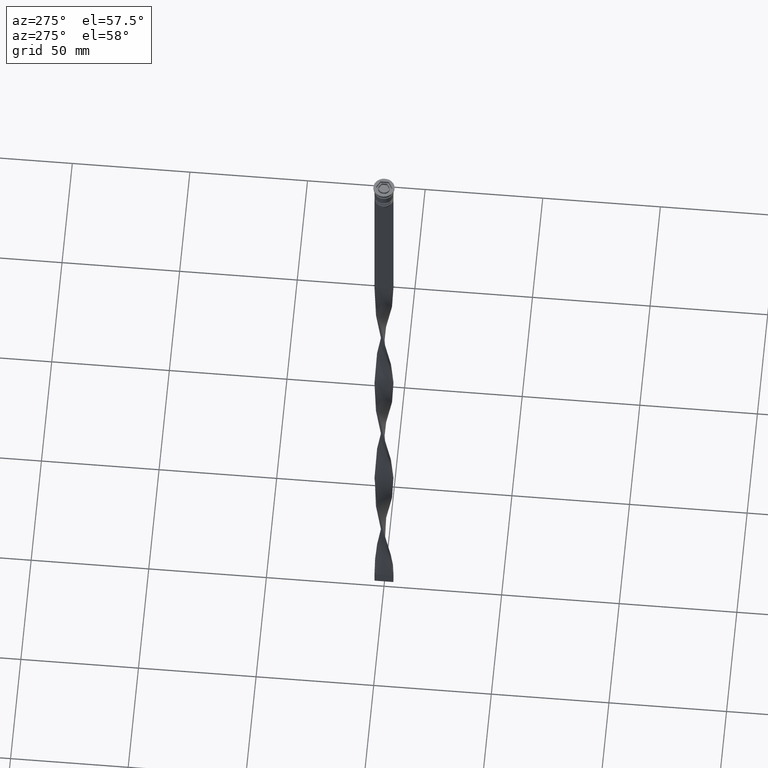
[diagram: clean part render]
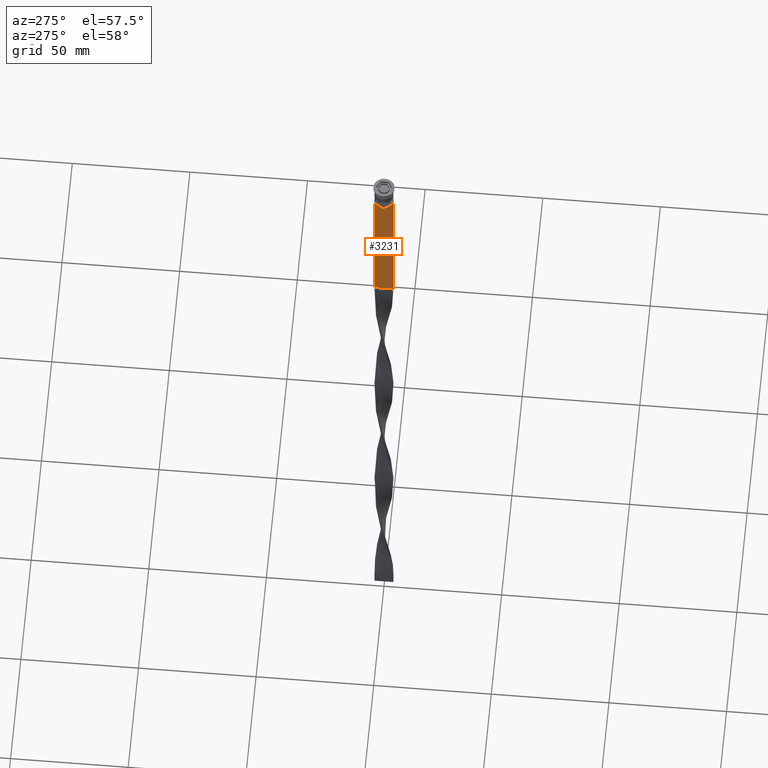
[diagram: same view with one face highlighted and labeled with its STEP entity id]
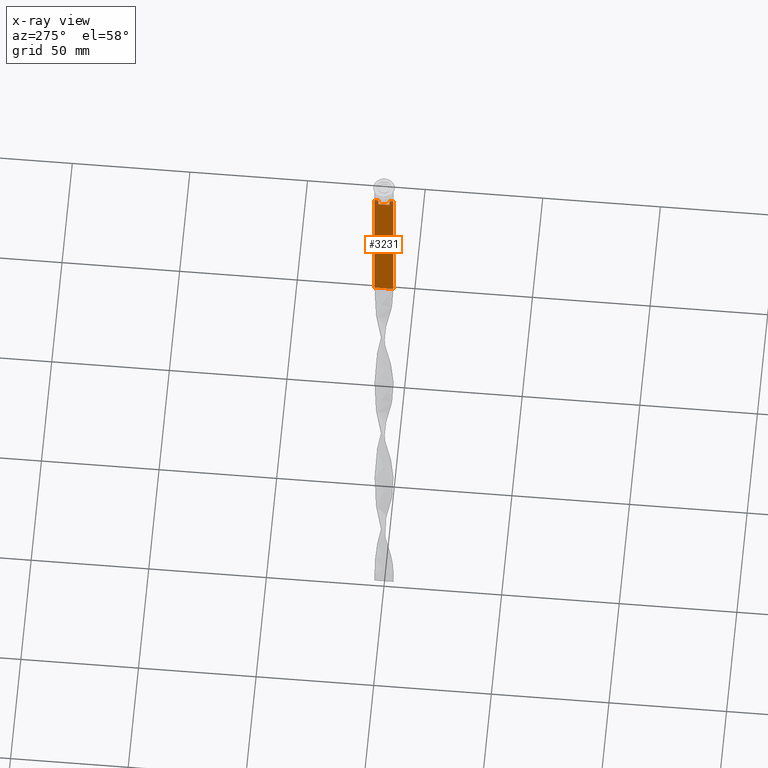
[diagram: x-ray of the same camera — body ghosted, the highlighted face saturated]
A machine part, auxiliary view. The second image highlights one B-rep face of the part: STEP entity #3231.
The next image is the same camera in x-ray: the body ghosted, the highlighted face saturated — about 0% of this face is hidden behind the body in this view.
In plain terms, the highlighted planar face has unit normal (-1, 0, 0).
Its self-contained STEP definition (entity closure, byte-faithful):
#157 = EDGE_CURVE ( 'NONE', #576, #1479, #4014, .T. ) ;
#183 = PLANE ( 'NONE',  #3582 ) ;
#197 = CARTESIAN_POINT ( 'NONE',  ( -0.5000000000000000000, 4.000000000000000000, -1.437742251701450202 ) ) ;
#260 = VERTEX_POINT ( 'NONE', #3611 ) ;
#312 = VERTEX_POINT ( 'NONE', #2014 ) ;
#365 = CARTESIAN_POINT ( 'NONE',  ( -0.5000000000000000000, -2.856571371417138572, -9.500000000000000000 ) ) ;
#398 = DIRECTION ( 'NONE',  ( 0.000000000000000000, 0.000000000000000000, 1.000000000000000000 ) ) ;
#501 = DIRECTION ( 'NONE',  ( 0.000000000000000000, 0.000000000000000000, -1.000000000000000000 ) ) ;
#518 = VERTEX_POINT ( 'NONE', #365 ) ;
#534 = VECTOR ( 'NONE', #501, 1000.000000000000000 ) ;
#572 = DIRECTION ( 'NONE',  ( -0.000000000000000000, -0.000000000000000000, 1.000000000000000000 ) ) ;
#576 = VERTEX_POINT ( 'NONE', #1578 ) ;
#615 = CARTESIAN_POINT ( 'NONE',  ( -0.5000000000000000000, -2.347338918861097135, -10.00000000000000000 ) ) ;
#804 = ORIENTED_EDGE ( 'NONE', *, *, #2360, .F. ) ;
#828 = CARTESIAN_POINT ( 'NONE',  ( -0.5000000000000000000, 2.347338918861097135, -12.50000000000000000 ) ) ;
#847 = LINE ( 'NONE', #3664, #3042 ) ;
#872 = EDGE_CURVE ( 'NONE', #576, #947, #847, .T. ) ;
#903 = DIRECTION ( 'NONE',  ( 0.000000000000000000, 0.000000000000000000, -1.000000000000000000 ) ) ;
#934 = CARTESIAN_POINT ( 'NONE',  ( -0.5000000000000000000, -4.000000000000000000, -78.50000000000000000 ) ) ;
#944 = CARTESIAN_POINT ( 'NONE',  ( -0.5000000000000000000, -3.867815921162741422, -9.500000000000000000 ) ) ;
#947 = VERTEX_POINT ( 'NONE', #3720 ) ;
#1112 = LINE ( 'NONE', #3641, #2188 ) ;
#1131 = EDGE_CURVE ( 'NONE', #947, #260, #1553, .T. ) ;
#1213 = LINE ( 'NONE', #2365, #2792 ) ;
#1257 = VECTOR ( 'NONE', #903, 1000.000000000000000 ) ;
#1405 = ORIENTED_EDGE ( 'NONE', *, *, #2809, .F. ) ;
#1408 = EDGE_CURVE ( 'NONE', #3778, #3305, #3820, .T. ) ;
#1426 = CARTESIAN_POINT ( 'NONE',  ( -0.5000000000000000000, -4.000000000000000000, -1.437742251701450202 ) ) ;
#1455 = CARTESIAN_POINT ( 'NONE',  ( -0.5000000000000000000, 2.347338918861097135, -10.00000000000000000 ) ) ;
#1479 = VERTEX_POINT ( 'NONE', #2834 ) ;
#1496 = CARTESIAN_POINT ( 'NONE',  ( -0.5000000000000000000, -2.347338918861097135, 0.000000000000000000 ) ) ;
#1537 = DIRECTION ( 'NONE',  ( 0.000000000000000000, 1.000000000000000000, 0.000000000000000000 ) ) ;
#1544 = DIRECTION ( 'NONE',  ( 0.000000000000000000, 0.000000000000000000, -1.000000000000000000 ) ) ;
#1546 = ORIENTED_EDGE ( 'NONE', *, *, #3374, .F. ) ;
#1553 = LINE ( 'NONE', #2838, #2709 ) ;
#1557 = EDGE_CURVE ( 'NONE', #2810, #518, #2044, .T. ) ;
#1578 = CARTESIAN_POINT ( 'NONE',  ( -0.5000000000000000000, 4.000000000000000000, -9.500000000000000000 ) ) ;
#1748 = FACE_OUTER_BOUND ( 'NONE', #2867, .T. ) ;
#1751 = CARTESIAN_POINT ( 'NONE',  ( -0.5000000000000000000, 2.687094542495897631, -9.666938847453439010 ) ) ;
#1764 = DIRECTION ( 'NONE',  ( 0.000000000000000000, -1.000000000000000000, 0.000000000000000000 ) ) ;
#1790 = LINE ( 'NONE', #1496, #3182 ) ;
#1863 = EDGE_CURVE ( 'NONE', #3119, #1479, #4025, .T. ) ;
#1882 = ORIENTED_EDGE ( 'NONE', *, *, #3330, .F. ) ;
#2014 = CARTESIAN_POINT ( 'NONE',  ( -0.5000000000000000000, -4.000000000000000000, -9.500000000000000000 ) ) ;
#2031 = CARTESIAN_POINT ( 'NONE',  ( -0.5000000000000000000, -2.856571371417138572, -9.500000000000000000 ) ) ;
#2044 = B_SPLINE_CURVE_WITH_KNOTS ( 'NONE', 3,
 ( #3905, #2580, #3220, #2031 ),
 .UNSPECIFIED., .F., .F.,
 ( 4, 4 ),
 ( 0.01178336557230038641, 0.01249758354768160454 ),
 .UNSPECIFIED. ) ;
#2069 = CARTESIAN_POINT ( 'NONE',  ( -0.5000000000000000000, 2.856571371417138572, -9.500000000000000000 ) ) ;
#2122 = ORIENTED_EDGE ( 'NONE', *, *, #872, .F. ) ;
#2124 = DIRECTION ( 'NONE',  ( 0.000000000000000000, -1.000000000000000000, 0.000000000000000000 ) ) ;
#2137 = ORIENTED_EDGE ( 'NONE', *, *, #1131, .F. ) ;
#2188 = VECTOR ( 'NONE', #1764, 1000.000000000000000 ) ;
#2199 = CARTESIAN_POINT ( 'NONE',  ( -0.5000000000000000000, -2.347338918861097135, -12.50000000000000000 ) ) ;
#2216 = CARTESIAN_POINT ( 'NONE',  ( -0.5000000000000000000, -4.000000000000000000, -1.437742251701450202 ) ) ;
#2234 = DIRECTION ( 'NONE',  ( 0.000000000000000000, -1.000000000000000000, 0.000000000000000000 ) ) ;
#2243 = DIRECTION ( 'NONE',  ( 0.000000000000000000, -1.000000000000000000, 0.000000000000000000 ) ) ;
#2258 = EDGE_CURVE ( 'NONE', #260, #3778, #3064, .T. ) ;
#2307 = ORIENTED_EDGE ( 'NONE', *, *, #1557, .F. ) ;
#2360 = EDGE_CURVE ( 'NONE', #312, #3119, #3493, .T. ) ;
#2365 = CARTESIAN_POINT ( 'NONE',  ( -0.5000000000000000000, 2.399999999999996803, -12.50000000000000000 ) ) ;
#2369 = CARTESIAN_POINT ( 'NONE',  ( -0.5000000000000000000, 2.347338918861097135, -10.00000000000000000 ) ) ;
#2389 = ORIENTED_EDGE ( 'NONE', *, *, #157, .T. ) ;
#2580 = CARTESIAN_POINT ( 'NONE',  ( -0.5000000000000000000, -2.517408374291112416, -9.833662228483172285 ) ) ;
#2709 = VECTOR ( 'NONE', #2243, 1000.000000000000000 ) ;
#2718 = VECTOR ( 'NONE', #1544, 1000.000000000000000 ) ;
#2792 = VECTOR ( 'NONE', #3954, 1000.000000000000000 ) ;
#2809 = EDGE_CURVE ( 'NONE', #3469, #2810, #1790, .T. ) ;
#2810 = VERTEX_POINT ( 'NONE', #615 ) ;
#2834 = CARTESIAN_POINT ( 'NONE',  ( -0.5000000000000000000, 4.000000000000000000, -78.50000000000000000 ) ) ;
#2838 = CARTESIAN_POINT ( 'NONE',  ( -0.5000000000000000000, -4.000000000000000000, -9.500000000000000000 ) ) ;
#2867 = EDGE_LOOP ( 'NONE', ( #3376, #2137, #2122, #2389, #3482, #804, #3063, #1882, #2307, #1405, #1546, #3545 ) ) ;
#2894 = CARTESIAN_POINT ( 'NONE',  ( -0.5000000000000000000, -4.000000000000000000, -9.500000000000000000 ) ) ;
#3042 = VECTOR ( 'NONE', #2124, 1000.000000000000000 ) ;
#3063 = ORIENTED_EDGE ( 'NONE', *, *, #3663, .F. ) ;
#3064 = B_SPLINE_CURVE_WITH_KNOTS ( 'NONE', 3,
 ( #2069, #1751, #3276, #2369 ),
 .UNSPECIFIED., .F., .F.,
 ( 4, 4 ),
 ( 0.004956812174141195064, 0.005670477137898153989 ),
 .UNSPECIFIED. ) ;
#3119 = VERTEX_POINT ( 'NONE', #3699 ) ;
#3182 = VECTOR ( 'NONE', #572, 1000.000000000000000 ) ;
#3220 = CARTESIAN_POINT ( 'NONE',  ( -0.5000000000000000000, -2.687095498514037839, -9.666937905752043037 ) ) ;
#3231 = ADVANCED_FACE ( 'NONE', ( #1748 ), #183, .T. ) ;
#3254 = VECTOR ( 'NONE', #2234, 1000.000000000000000 ) ;
#3276 = CARTESIAN_POINT ( 'NONE',  ( -0.5000000000000000000, 2.517407211010871393, -9.833663366238582171 ) ) ;
#3305 = VERTEX_POINT ( 'NONE', #828 ) ;
#3316 = VECTOR ( 'NONE', #1537, 1000.000000000000000 ) ;
#3330 = EDGE_CURVE ( 'NONE', #518, #3452, #1112, .T. ) ;
#3374 = EDGE_CURVE ( 'NONE', #3305, #3469, #1213, .T. ) ;
#3376 = ORIENTED_EDGE ( 'NONE', *, *, #2258, .F. ) ;
#3426 = CARTESIAN_POINT ( 'NONE',  ( -0.5000000000000000000, 2.347338918861097135, 0.000000000000000000 ) ) ;
#3452 = VERTEX_POINT ( 'NONE', #944 ) ;
#3469 = VERTEX_POINT ( 'NONE', #2199 ) ;
#3482 = ORIENTED_EDGE ( 'NONE', *, *, #1863, .F. ) ;
#3493 = LINE ( 'NONE', #2216, #2718 ) ;
#3545 = ORIENTED_EDGE ( 'NONE', *, *, #1408, .F. ) ;
#3582 = AXIS2_PLACEMENT_3D ( 'NONE', #1426, #3851, #398 ) ;
#3611 = CARTESIAN_POINT ( 'NONE',  ( -0.5000000000000000000, 2.856571371417138572, -9.500000000000000000 ) ) ;
#3641 = CARTESIAN_POINT ( 'NONE',  ( -0.5000000000000000000, -4.000000000000000000, -9.500000000000000000 ) ) ;
#3663 = EDGE_CURVE ( 'NONE', #3452, #312, #3818, .T. ) ;
#3664 = CARTESIAN_POINT ( 'NONE',  ( -0.5000000000000000000, -4.000000000000000000, -9.500000000000000000 ) ) ;
#3699 = CARTESIAN_POINT ( 'NONE',  ( -0.5000000000000000000, -4.000000000000000000, -78.50000000000000000 ) ) ;
#3720 = CARTESIAN_POINT ( 'NONE',  ( -0.5000000000000000000, 3.867815921162741422, -9.500000000000000000 ) ) ;
#3778 = VERTEX_POINT ( 'NONE', #1455 ) ;
#3818 = LINE ( 'NONE', #2894, #3254 ) ;
#3820 = LINE ( 'NONE', #3426, #1257 ) ;
#3851 = DIRECTION ( 'NONE',  ( -1.000000000000000000, 0.000000000000000000, 0.000000000000000000 ) ) ;
#3905 = CARTESIAN_POINT ( 'NONE',  ( -0.5000000000000000000, -2.347338918861097135, -10.00000000000000000 ) ) ;
#3954 = DIRECTION ( 'NONE',  ( 0.000000000000000000, -1.000000000000000000, 0.000000000000000000 ) ) ;
#4014 = LINE ( 'NONE', #197, #534 ) ;
#4025 = LINE ( 'NONE', #934, #3316 ) ;